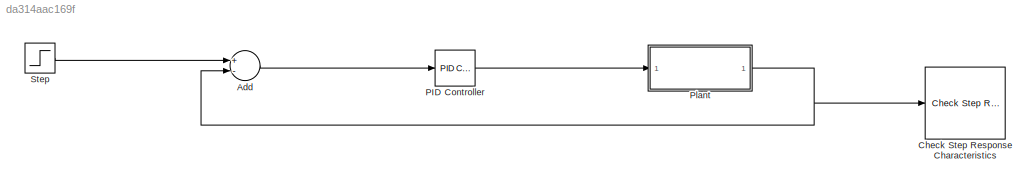
MODEL slx_da314aac169f
KIND model
CONFIG AbsTol = auto
CONFIG EnableMultiTasking = off
CONFIG FixedStep = auto
CONFIG MaxStep = auto
CONFIG MinStep = auto
CONFIG RelTol = 1e-3
CONFIG SampleTimeConstraint = Unconstrained
CONFIG Solver = VariableStepAuto
CONFIG SolverName = VariableStepAuto
CONFIG StartTime = 0.0
CONFIG StopTime = 10.0
BLOCK [Sum] Add
  InputSameDT = off
  Inputs = +-
  OutDataTypeStr = Inherit: Inherit via internal rule
  Ports = [2, 1]
  SaturateOnIntegerOverflow = off
BLOCK [Reference] Check Step Response Characteristics  REF=checkpacklib/Check Step Response 
Characteristics
  InstantiateOnLoad = on
  Ports = [1]
  SourceBlock = checkpacklib/Check Step Response \nCharacteristics
  SourceProductBaseCode = CT
  SourceProductName = Control System Toolbox
  SourceType = Checks_StepResponse
BLOCK [Reference] PID Controller  REF=simulink/Continuous/PID Controller
  Ports = [1, 1]
  SourceBlock = simulink/Continuous/PID Controller
  SourceProductBaseCode = SL
  SourceProductName = Simulink
  SourceType = PID 1dof
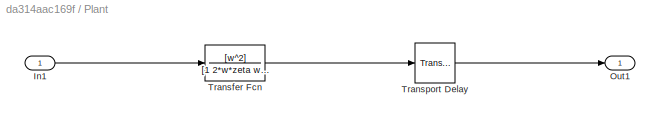
BLOCK [SubSystem] Plant
  Ports = [1, 1]
  RequestExecContextInheritance = off
BLOCK [Inport] Plant/In1
  IconDisplay = Port number
BLOCK [Outport] Plant/Out1
  IconDisplay = Port number
BLOCK [TransferFcn] Plant/Transfer Fcn
  Denominator = [1 2*w*zeta w^2]
  Numerator = [w^2]
BLOCK [TransportDelay] Plant/Transport Delay
  Ports = [1, 1]
BLOCK [Step] Step
  SampleTime = 0
LINE Add:1 -> PID Controller:1
LINE PID Controller:1 -> Plant:1
LINE Plant/In1:1 -> Plant/Transfer Fcn:1
LINE Plant/Transfer Fcn:1 -> Plant/Transport Delay:1
LINE Plant/Transport Delay:1 -> Plant/Out1:1
NET Plant:1 -> Add:2, Check Step Response Characteristics:1
LINE Step:1 -> Add:1
note: NET lines group one-source signal fan-out (src -> all destinations, sorted); 1:1 wires keep LINE
